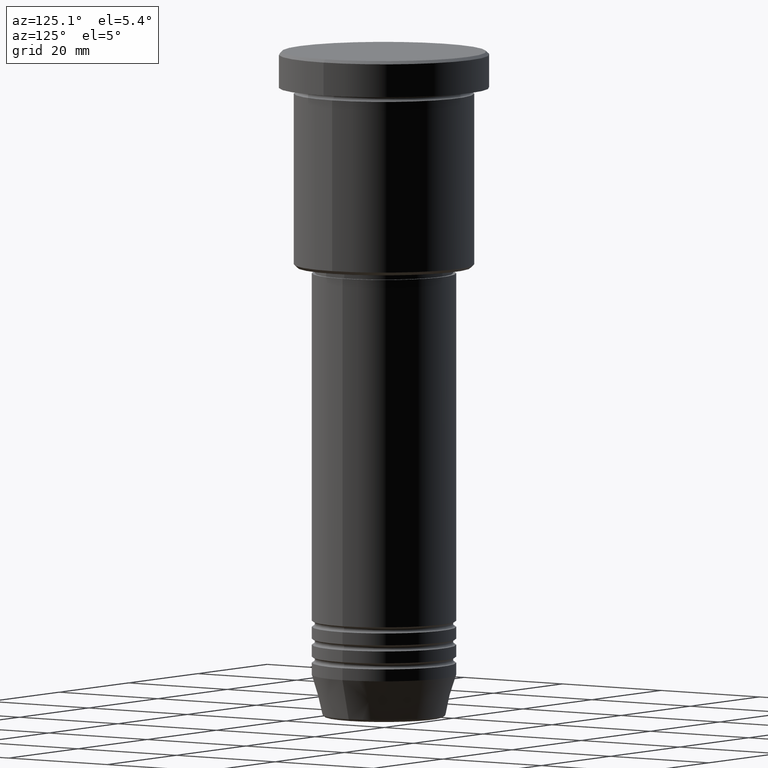
[diagram: clean part render]
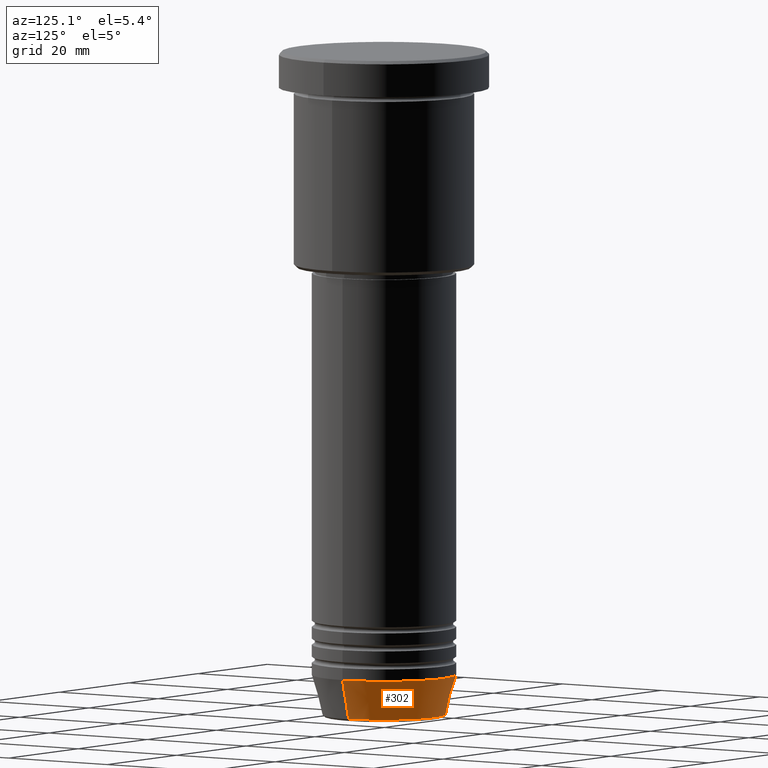
[diagram: same view with one face highlighted and labeled with its STEP entity id]
A machine part, auxiliary view. The second image highlights one B-rep face of the part: STEP entity #302.
In plain terms, the highlighted conical surface has half-angle 15 deg.
Its self-contained STEP definition (entity closure, byte-faithful):
#3 = DIRECTION ( 'NONE',  ( -0.2588190451025213501, 3.169619151431772337E-17, 0.9659258262890680902 ) ) ;
#19 = CARTESIAN_POINT ( 'NONE',  ( -12.00000000000000000, 1.469576158976823947E-15, -104.0000000000000142 ) ) ;
#74 = FACE_OUTER_BOUND ( 'NONE', #777, .T. ) ;
#159 = DIRECTION ( 'NONE',  ( -0.000000000000000000, -0.000000000000000000, 1.000000000000000000 ) ) ;
#186 = LINE ( 'NONE', #466, #769 ) ;
#204 = VECTOR ( 'NONE', #534, 1000.000000000000000 ) ;
#241 = AXIS2_PLACEMENT_3D ( 'NONE', #857, #669, #591 ) ;
#266 = DIRECTION ( 'NONE',  ( 1.000000000000000000, 0.000000000000000000, 0.000000000000000000 ) ) ;
#302 = ADVANCED_FACE ( 'NONE', ( #74 ), #1020, .T. ) ;
#318 = ORIENTED_EDGE ( 'NONE', *, *, #1052, .T. ) ;
#323 = DIRECTION ( 'NONE',  ( 1.000000000000000000, 0.000000000000000000, 0.000000000000000000 ) ) ;
#354 = CIRCLE ( 'NONE', #241, 10.22365507213719305 ) ;
#409 = VERTEX_POINT ( 'NONE', #672 ) ;
#413 = VERTEX_POINT ( 'NONE', #19 ) ;
#430 = CARTESIAN_POINT ( 'NONE',  ( 12.00000000000000000, 0.000000000000000000, -104.0000000000000142 ) ) ;
#448 = DIRECTION ( 'NONE',  ( -0.000000000000000000, -0.000000000000000000, 1.000000000000000000 ) ) ;
#466 = CARTESIAN_POINT ( 'NONE',  ( -12.00000000000000000, 1.469576158976823947E-15, -104.0000000000000142 ) ) ;
#491 = EDGE_CURVE ( 'NONE', #999, #413, #603, .T. ) ;
#534 = DIRECTION ( 'NONE',  ( 0.2588190451025213501, 0.000000000000000000, 0.9659258262890680902 ) ) ;
#538 = EDGE_CURVE ( 'NONE', #916, #999, #1152, .T. ) ;
#591 = DIRECTION ( 'NONE',  ( 1.000000000000000000, 0.000000000000000000, 0.000000000000000000 ) ) ;
#603 = CIRCLE ( 'NONE', #783, 12.00000000000000000 ) ;
#669 = DIRECTION ( 'NONE',  ( -0.000000000000000000, -0.000000000000000000, 1.000000000000000000 ) ) ;
#672 = CARTESIAN_POINT ( 'NONE',  ( -10.22365507213719305, 1.360806402472382744E-15, -110.6294095225512706 ) ) ;
#740 = ORIENTED_EDGE ( 'NONE', *, *, #856, .T. ) ;
#769 = VECTOR ( 'NONE', #3, 1000.000000000000000 ) ;
#777 = EDGE_LOOP ( 'NONE', ( #740, #318, #950, #847 ) ) ;
#783 = AXIS2_PLACEMENT_3D ( 'NONE', #1027, #159, #323 ) ;
#799 = CARTESIAN_POINT ( 'NONE',  ( 12.00000000000000000, 0.000000000000000000, -104.0000000000000142 ) ) ;
#847 = ORIENTED_EDGE ( 'NONE', *, *, #538, .F. ) ;
#856 = EDGE_CURVE ( 'NONE', #916, #409, #354, .T. ) ;
#857 = CARTESIAN_POINT ( 'NONE',  ( 0.000000000000000000, 0.000000000000000000, -110.6294095225512706 ) ) ;
#871 = CARTESIAN_POINT ( 'NONE',  ( 10.22365507213719305, 0.000000000000000000, -110.6294095225512706 ) ) ;
#916 = VERTEX_POINT ( 'NONE', #871 ) ;
#950 = ORIENTED_EDGE ( 'NONE', *, *, #491, .F. ) ;
#999 = VERTEX_POINT ( 'NONE', #799 ) ;
#1009 = CARTESIAN_POINT ( 'NONE',  ( 0.000000000000000000, 0.000000000000000000, -104.0000000000000142 ) ) ;
#1020 = CONICAL_SURFACE ( 'NONE', #1129, 12.00000000000000000, 0.2617993877991500740 ) ;
#1027 = CARTESIAN_POINT ( 'NONE',  ( 0.000000000000000000, 0.000000000000000000, -104.0000000000000142 ) ) ;
#1052 = EDGE_CURVE ( 'NONE', #409, #413, #186, .T. ) ;
#1129 = AXIS2_PLACEMENT_3D ( 'NONE', #1009, #448, #266 ) ;
#1152 = LINE ( 'NONE', #430, #204 ) ;